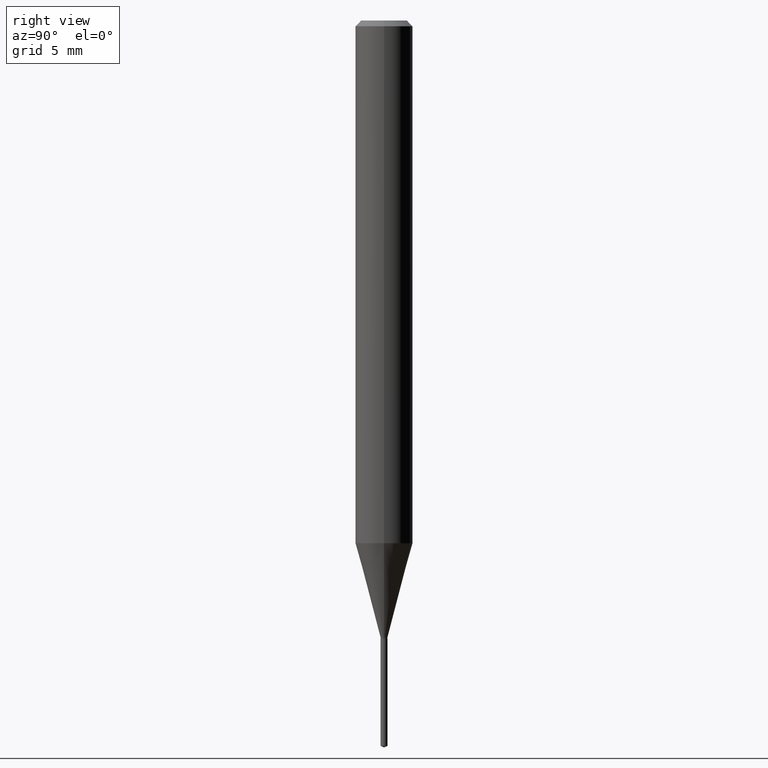
[diagram: clean part render]
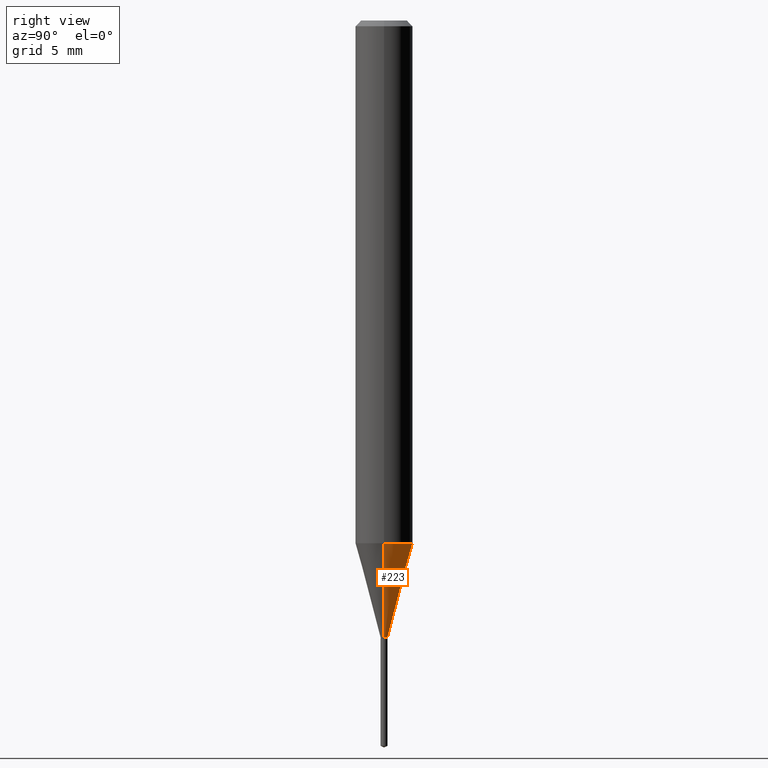
[diagram: same view with one face highlighted and labeled with its STEP entity id]
A machine part, right view. The second image highlights one B-rep face of the part: STEP entity #223.
In plain terms, the highlighted conical surface has half-angle 15 deg.
Its self-contained STEP definition (entity closure, byte-faithful):
#9 = DIRECTION ( 'NONE',  ( -2.445468806185136597E-29, 3.491481338843145583E-15, 1.000000000000000000 ) ) ;
#11 = DIRECTION ( 'NONE',  ( 0.2588190451025213501, 1.565188264969621968E-15, 0.9659258262890682012 ) ) ;
#18 = VECTOR ( 'NONE', #11, 39.37007874015747433 ) ;
#21 = VERTEX_POINT ( 'NONE', #59 ) ;
#24 = EDGE_CURVE ( 'NONE', #92, #314, #276, .T. ) ;
#26 = DIRECTION ( 'NONE',  ( -2.445468806185136597E-29, 3.491481338843145583E-15, 1.000000000000000000 ) ) ;
#40 = EDGE_CURVE ( 'NONE', #391, #92, #309, .T. ) ;
#45 = DIRECTION ( 'NONE',  ( -0.2588190451025213501, 5.211531920934551042E-15, 0.9659258262890682012 ) ) ;
#59 = CARTESIAN_POINT ( 'NONE',  ( 0.05905000000000013710, -4.168200114187600418E-15, -1.075719960546796861 ) ) ;
#82 = CARTESIAN_POINT ( 'NONE',  ( -0.05905000000000013710, -3.336280682603885216E-15, -1.075719960546796861 ) ) ;
#92 = VERTEX_POINT ( 'NONE', #413 ) ;
#95 = EDGE_LOOP ( 'NONE', ( #317, #288, #481, #285 ) ) ;
#112 = CARTESIAN_POINT ( 'NONE',  ( 3.104767196332649259E-29, -4.432784707795257778E-15, -1.269600000000000062 ) ) ;
#123 = LINE ( 'NONE', #132, #18 ) ;
#132 = CARTESIAN_POINT ( 'NONE',  ( 0.007100000000000000408, -4.482363742806830057E-15, -1.269600000000000062 ) ) ;
#168 = DIRECTION ( 'NONE',  ( 1.000000000000000000, -6.982962677686265133E-15, 0.000000000000000000 ) ) ;
#181 = DIRECTION ( 'NONE',  ( -2.445468806185136597E-29, 3.491481338843145583E-15, 1.000000000000000000 ) ) ;
#189 = DIRECTION ( 'NONE',  ( 1.000000000000000000, -6.982962677686291954E-15, 0.000000000000000000 ) ) ;
#223 = ADVANCED_FACE ( 'NONE', ( #449 ), #228, .T. ) ;
#228 = CONICAL_SURFACE ( 'NONE', #400, 0.007100000000000000408, 0.2617993877991500740 ) ;
#238 = CARTESIAN_POINT ( 'NONE',  ( -0.007100000000000000408, -4.382336173556289910E-15, -1.269600000000000062 ) ) ;
#276 = LINE ( 'NONE', #238, #477 ) ;
#285 = ORIENTED_EDGE ( 'NONE', *, *, #359, .F. ) ;
#288 = ORIENTED_EDGE ( 'NONE', *, *, #24, .T. ) ;
#309 = CIRCLE ( 'NONE', #473, 0.007100000000000000408 ) ;
#314 = VERTEX_POINT ( 'NONE', #82 ) ;
#316 = CARTESIAN_POINT ( 'NONE',  ( 0.007100000000000000408, -4.482363742806830057E-15, -1.269600000000000062 ) ) ;
#317 = ORIENTED_EDGE ( 'NONE', *, *, #40, .T. ) ;
#318 = CARTESIAN_POINT ( 'NONE',  ( 2.630639607707897401E-29, -3.755856168070225498E-15, -1.075719960546796861 ) ) ;
#333 = DIRECTION ( 'NONE',  ( 1.000000000000000000, -6.982962677686291954E-15, 0.000000000000000000 ) ) ;
#349 = EDGE_CURVE ( 'NONE', #21, #314, #482, .T. ) ;
#359 = EDGE_CURVE ( 'NONE', #391, #21, #123, .T. ) ;
#373 = CARTESIAN_POINT ( 'NONE',  ( 3.104767196332649259E-29, -4.432784707795257778E-15, -1.269600000000000062 ) ) ;
#391 = VERTEX_POINT ( 'NONE', #316 ) ;
#400 = AXIS2_PLACEMENT_3D ( 'NONE', #112, #26, #189 ) ;
#413 = CARTESIAN_POINT ( 'NONE',  ( -0.007100000000000000408, -4.385129358627364316E-15, -1.269600000000000062 ) ) ;
#449 = FACE_OUTER_BOUND ( 'NONE', #95, .T. ) ;
#457 = AXIS2_PLACEMENT_3D ( 'NONE', #318, #9, #168 ) ;
#473 = AXIS2_PLACEMENT_3D ( 'NONE', #373, #181, #333 ) ;
#477 = VECTOR ( 'NONE', #45, 39.37007874015747433 ) ;
#481 = ORIENTED_EDGE ( 'NONE', *, *, #349, .F. ) ;
#482 = CIRCLE ( 'NONE', #457, 0.05905000000000013016 ) ;